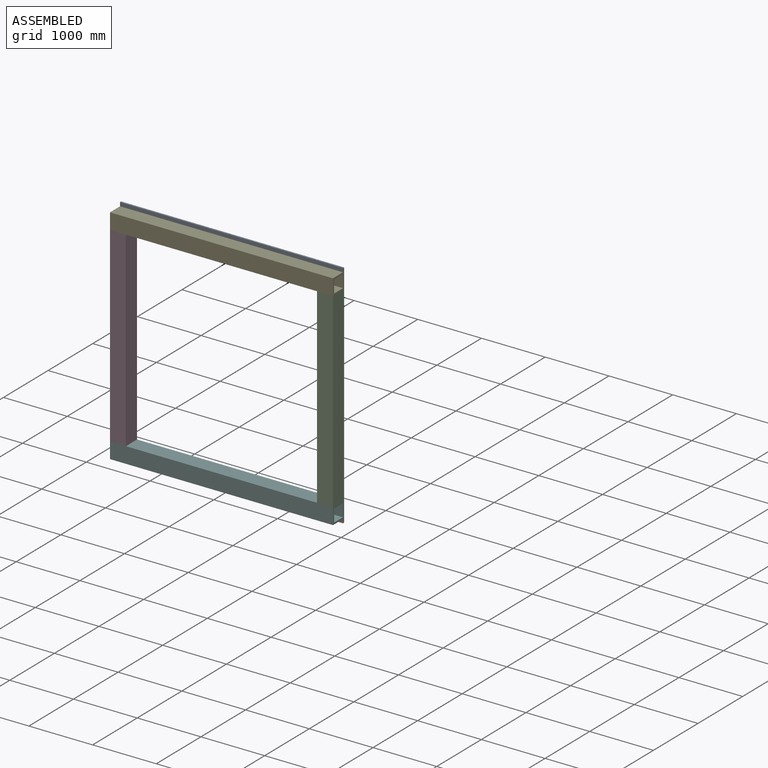
[diagram: assembled view]
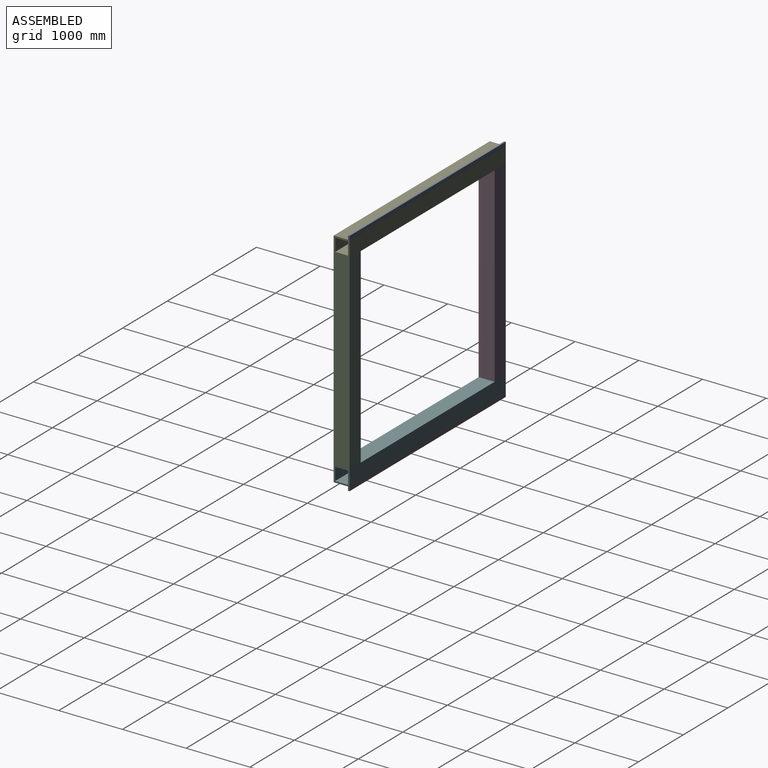
[diagram: assembled view, second angle]
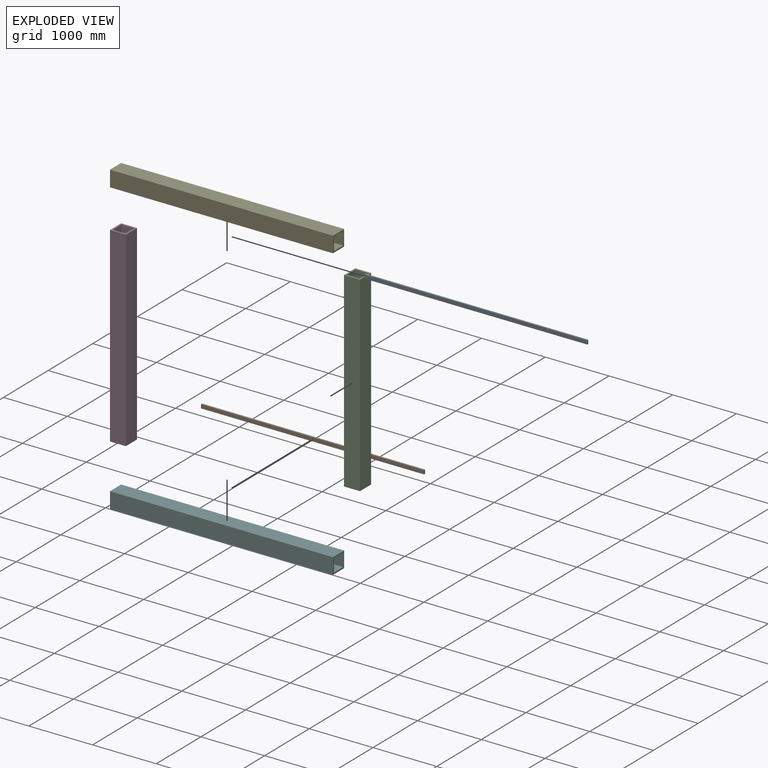
[diagram: exploded view]
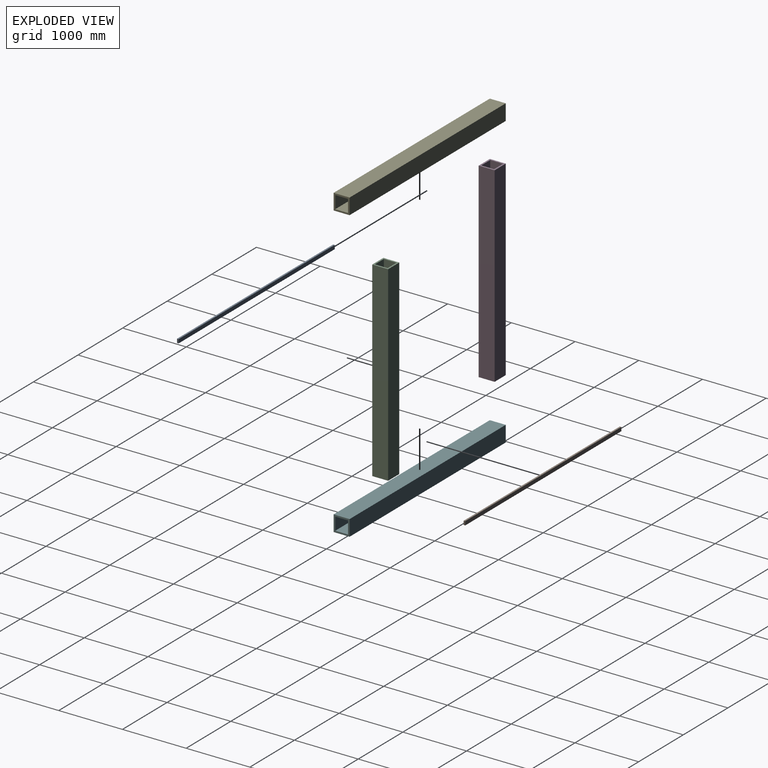
[diagram: exploded view, second angle]
ASSEMBLY  parts=6 mates=5
PART A: 6 faces, bbox 3500x25x60 mm
  f0: plane 3500x25mm, normal (0,0,-1), area 87500mm2, adj f1,f3,f4,f5
  f1: plane 3500x60mm, normal (0,1,0), area 210000mm2, adj f0,f2,f4,f5
  f2: plane 3500x25mm, normal (0,0,1), area 87500mm2, adj f1,f3,f4,f5
  f3: plane 3500x60mm, normal (0,-1,0), area 210000mm2, adj f0,f2,f4,f5
  f4: plane 60x25mm, normal (1,0,0), area 1500mm2, adj f0,f1,f2,f3
  f5: plane 60x25mm, normal (-1,0,0), area 1500mm2, adj f0,f1,f2,f3
PART B: same geometry as A
PART C: 10 faces, bbox 250x250x3000 mm
  f0: plane 3000x200mm, normal (-1,0,0), area 600000mm2, adj f1,f7,f8,f9
  f1: plane 3000x200mm, normal (0,1,0), area 600000mm2, adj f0,f2,f8,f9
  f2: plane 3000x200mm, normal (1,0,0), area 600000mm2, adj f1,f7,f8,f9
  f3: plane 3000x250mm, normal (-1,0,0), area 750000mm2, adj f4,f6,f8,f9
  f4: plane 3000x250mm, normal (0,-1,0), area 750000mm2, adj f3,f5,f8,f9
  f5: plane 3000x250mm, normal (1,0,0), area 750000mm2, adj f4,f6,f8,f9
  f6: plane 3000x250mm, normal (0,1,0), area 750000mm2, adj f3,f5,f8,f9
  f7: plane 3000x200mm, normal (0,-1,0), area 600000mm2, adj f0,f2,f8,f9
  f8: plane 250x250mm, normal (0,0,1), area 22500mm2, adj f0,f1,f2,f3,f4,f5,f6,f7
  f9: plane 250x250mm, normal (0,0,-1), area 22500mm2, adj f0,f1,f2,f3,f4,f5,f6,f7
PART D: same geometry as C
PART E: 10 faces, bbox 3500x250x250 mm
  f0: plane 3500x200mm, normal (0,1,0), area 700000mm2, adj f1,f7,f8,f9
  f1: plane 3500x200mm, normal (0,0,-1), area 700000mm2, adj f0,f2,f8,f9
  f2: plane 3500x200mm, normal (0,-1,0), area 700000mm2, adj f1,f7,f8,f9
  f3: plane 3500x250mm, normal (0,-1,0), area 875000mm2, adj f4,f6,f8,f9
  f4: plane 3500x250mm, normal (0,0,-1), area 875000mm2, adj f3,f5,f8,f9
  f5: plane 3500x250mm, normal (0,1,0), area 875000mm2, adj f4,f6,f8,f9
  f6: plane 3500x250mm, normal (0,0,1), area 875000mm2, adj f3,f5,f8,f9
  f7: plane 3500x200mm, normal (0,0,1), area 700000mm2, adj f0,f2,f8,f9
  f8: plane 250x250mm, normal (1,0,0), area 22500mm2, adj f0,f1,f2,f3,f4,f5,f6,f7
  f9: plane 250x250mm, normal (-1,0,0), area 22500mm2, adj f0,f1,f2,f3,f4,f5,f6,f7
PART F: same geometry as E
PLACE A t=(-1840.77,125,729.42)mm
PLACE B t=(-1840.77,125,-2830.58)mm
PLACE C t=(1409.23,-125,-2520.58)mm
PLACE D t=(-1840.77,-125,-2520.58)mm
PLACE E t=(-1840.77,-125,479.42)mm fixed
PLACE F t=(-1840.77,-125,-2770.58)mm
MATE fastened D.f4 <-> E.f3  axis (0,-1,0) through (-1840.77,-125,479.42)mm
MATE fastened A.f4 <-> E.f8  axis (1,0,0) through (1659.23,125,729.42)mm
MATE fastened E.f3 <-> C.f4  axis (0,-1,0) through (1659.23,-125,479.42)mm
MATE fastened C.f4 <-> F.f3  axis (0,-1,0) through (1659.23,-125,-2520.58)mm
MATE fastened B.f4 <-> F.f8  axis (1,0,0) through (1659.23,125,-2770.58)mm
